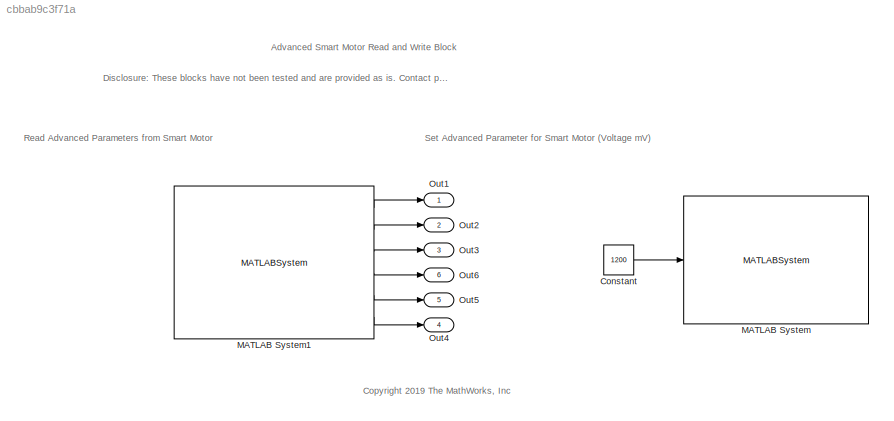
MODEL slx_cbbab9c3f71a
KIND model
CONFIG AbsTol = auto
CONFIG EnableMultiTasking = off
CONFIG FixedStep = auto
CONFIG MaxStep = auto
CONFIG MinStep = auto
CONFIG RelTol = 1e-3
CONFIG SampleTimeConstraint = Unconstrained
CONFIG Solver = FixedStepAuto
CONFIG SolverName = FixedStepAuto
CONFIG StartTime = 0.0
CONFIG StopTime = inf
BLOCK [Constant] Constant
  SampleTime = -1
  Value = 1200
BLOCK [MATLABSystem] MATLAB System
  MaskDisplay = color('white');\nplot([100,100,100,100]*1,[100,100,100,100]*1);\nplot([100,100,100,100]*0,[100,100,100,100]*0);\ncolor('black');\nimage(fullfile(codertarget.vexv5.internal.getSpPkgRootDir, 'resources', 'vex-v5-motor2.png'),'center');\npatch([0.8, 0.8, 1, 1], [0.82857, 1, 1, 0.82857], [1, 1, 1]);\ncolor('blue');\ntext(99, 92, 'VEX V5 ', 'horizontalAlignment', 'right');\ncolor('black');\ntext(62,12,'Port: 1'...<+71ch>
  MaskType = Advanced_SmartMotorWrite
  MotorBrakeMode = Coast
  OperationMode = Advanced Control
  Ports = [1]
  System = Advanced_SmartMotorWrite
  motorPort = 1
  scaleFactor = 6:1
BLOCK [MATLABSystem] MATLAB System1
  MaskDisplay = color('white');\nplot([100,100,100,100]*1,[100,100,100,100]*1);\nplot([100,100,100,100]*0,[100,100,100,100]*0);\ncolor('black');\nimage(fullfile(codertarget.vexcommon.internal.getRootDir, 'resources', 'encoder.jpg'),'center');\npatch([0.8, 0.8, 1, 1], [0.82857, 1, 1, 0.82857], [1, 1, 1]);\ncolor('blue');\ntext(75, 92, 'VEX V5 ', 'horizontalAlignment', 'right');\ncolor('black');\ntext(50,15,'Port: 1','horiz...<+236ch>
  MaskType = Advanced_SmartMotorRead
  Ports = [0, 6]
  SampleTime = 0.02
  System = Advanced_SmartMotorRead
  additionalOutput = off
  motorPort = 1
BLOCK [Outport] Out1
  IconDisplay = Port number
BLOCK [Outport] Out2
  IconDisplay = Port number
  Port = 2
BLOCK [Outport] Out3
  IconDisplay = Port number
  Port = 3
BLOCK [Outport] Out4
  IconDisplay = Port number
  Port = 4
BLOCK [Outport] Out5
  IconDisplay = Port number
  Port = 5
BLOCK [Outport] Out6
  IconDisplay = Port number
  Port = 6
ANNOTATION (root): Advanced Smart Motor Read and Write Block
ANNOTATION (root): <copyright redacted>
ANNOTATION (root): Disclosure: These blocks have not been tested and are provided as is. Contact <email> with any questions
ANNOTATION (root): Read Advanced Parameters from Smart Motor
ANNOTATION (root): Set Advanced Parameter for Smart Motor (Voltage mV)
LINE Constant:1 -> MATLAB System:1
LINE MATLAB System1:1 -> Out1:1
LINE MATLAB System1:2 -> Out2:1
LINE MATLAB System1:3 -> Out3:1
LINE MATLAB System1:4 -> Out6:1
LINE MATLAB System1:5 -> Out5:1
LINE MATLAB System1:6 -> Out4:1
